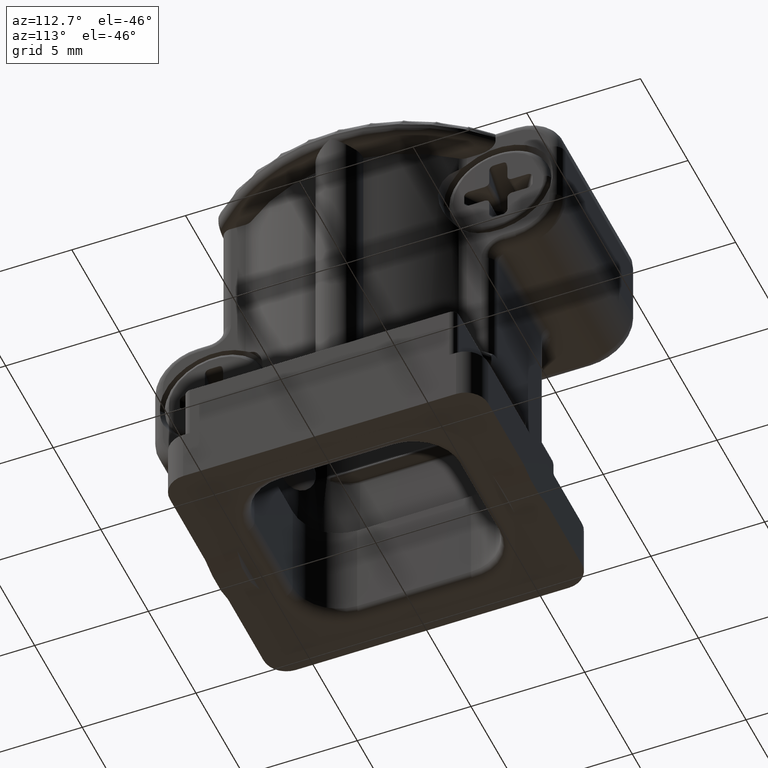
[diagram: clean part render]
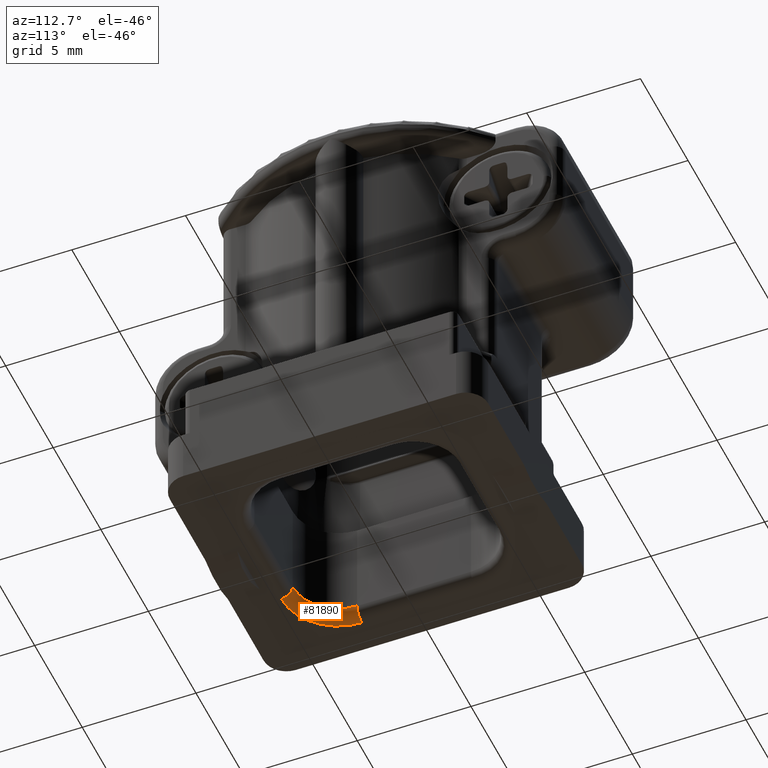
[diagram: same view with one face highlighted and labeled with its STEP entity id]
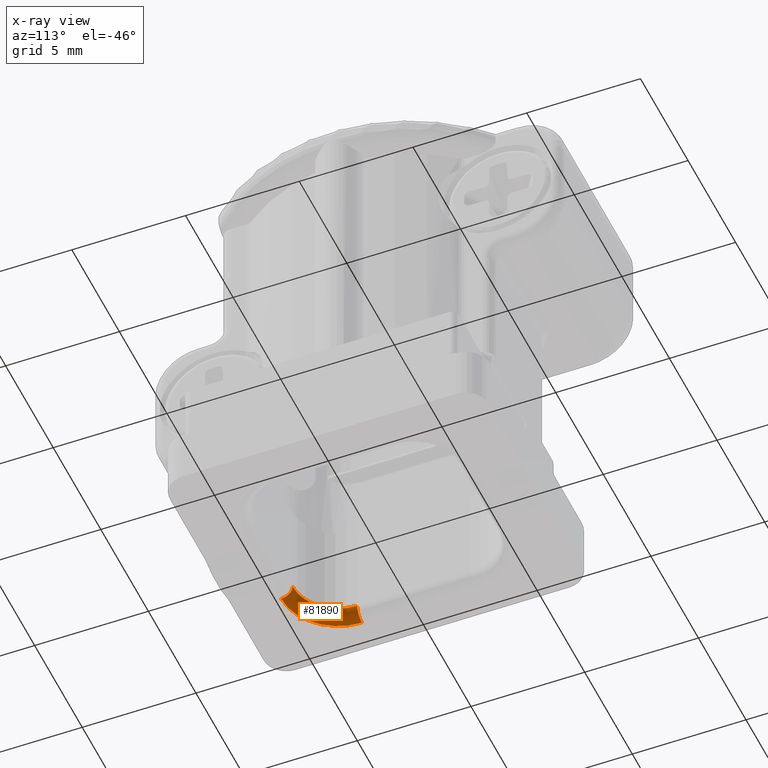
[diagram: x-ray of the same camera — body ghosted, the highlighted face saturated]
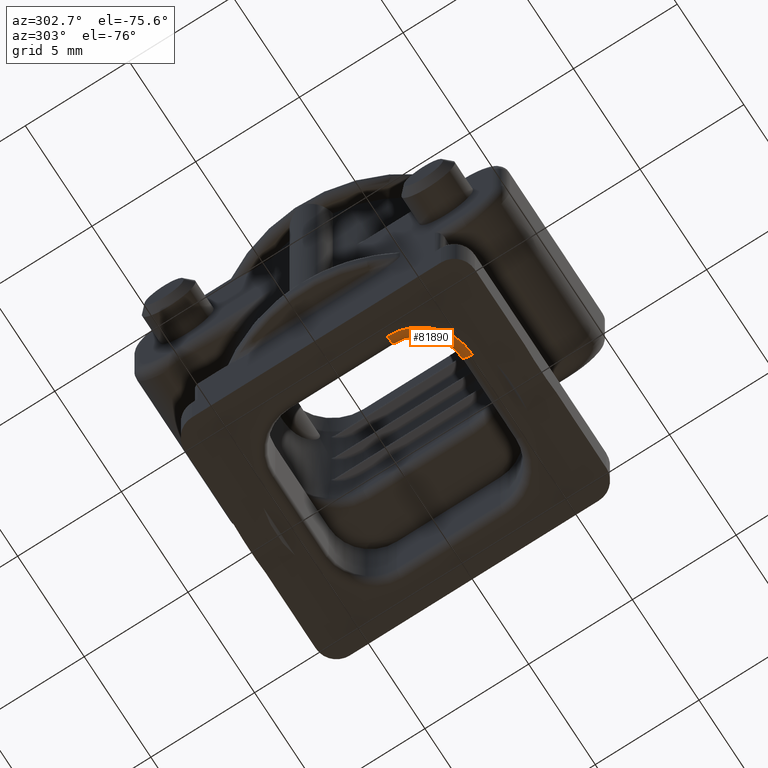
[diagram: same view with one face highlighted and labeled with its STEP entity id]
A machine part, auxiliary view. The second image highlights one B-rep face of the part: STEP entity #81890.
The next image is the same camera in x-ray: the body ghosted, the highlighted face saturated — about 0% of this face is hidden behind the body in this view.
A second angle (auxiliary view) of the same face is appended — the face is thin or edge-on in the first view.
In plain terms, the highlighted toroidal blend (fillet) surface has major radius 2.5 mm and minor (blend) radius 0.5 mm.
Its self-contained STEP definition (entity closure, byte-faithful):
#60=CARTESIAN_POINT('',(22.724404350069,-43.3661187952982,
14.0822510026395));
#70=DIRECTION('',(0.,0.,-1.));
#80=DIRECTION('',(-1.,0.,0.));
#90=AXIS2_PLACEMENT_3D('',#60,#70,#80);
#100=CIRCLE('',#90,2.5);
#110=CARTESIAN_POINT('',(22.724404350069,-45.8661187952982,
14.0822510026395));
#120=VERTEX_POINT('',#110);
#130=CARTESIAN_POINT('',(20.224404350069,-43.3661187952982,
14.0822510026395));
#140=VERTEX_POINT('',#130);
#150=EDGE_CURVE('',#120,#140,#100,.T.);
#2620=CARTESIAN_POINT('',(20.724404350069,-43.3661187952982,
13.5822510026395));
#2630=VERTEX_POINT('',#2620);
#2660=CARTESIAN_POINT('',(20.224404350069,-43.3661187952982,
13.5822510026395));
#2670=DIRECTION('',(0.,-1.,0.));
#2680=DIRECTION('',(-1.,0.,0.));
#2690=AXIS2_PLACEMENT_3D('',#2660,#2670,#2680);
#2700=CIRCLE('',#2690,0.5);
#2710=EDGE_CURVE('',#2630,#140,#2700,.T.);
#2820=CARTESIAN_POINT('',(22.724404350069,-45.8661187952982,
13.5822510026395));
#2830=DIRECTION('',(1.,0.,0.));
#2840=DIRECTION('',(0.,-1.,0.));
#2850=AXIS2_PLACEMENT_3D('',#2820,#2830,#2840);
#2860=CIRCLE('',#2850,0.5);
#2870=CARTESIAN_POINT('',(22.724404350069,-45.3661187952982,
13.5822510026395));
#2880=VERTEX_POINT('',#2870);
#2890=EDGE_CURVE('',#2880,#120,#2860,.T.);
#81560=CARTESIAN_POINT('',(22.724404350069,-43.3661187952982,
13.5822510026395));
#81570=DIRECTION('',(0.,0.,-1.));
#81580=DIRECTION('',(-1.,0.,0.));
#81590=AXIS2_PLACEMENT_3D('',#81560,#81570,#81580);
#81600=CIRCLE('',#81590,2.);
#81610=EDGE_CURVE('',#2880,#2630,#81600,.T.);
#81780=CARTESIAN_POINT('',(22.724404350069,-43.3661187952982,
13.5822510026395));
#81790=DIRECTION('',(0.,0.,-1.));
#81800=DIRECTION('',(-1.,0.,0.));
#81810=AXIS2_PLACEMENT_3D('',#81780,#81790,#81800);
#81820=TOROIDAL_SURFACE('',#81810,2.5,0.5);
#81830=ORIENTED_EDGE('',*,*,#2890,.F.);
#81840=ORIENTED_EDGE('',*,*,#150,.F.);
#81850=ORIENTED_EDGE('',*,*,#2710,.T.);
#81860=ORIENTED_EDGE('',*,*,#81610,.T.);
#81870=EDGE_LOOP('',(#81860,#81850,#81840,#81830));
#81880=FACE_OUTER_BOUND('',#81870,.T.);
#81890=ADVANCED_FACE('',(#81880),#81820,.T.);